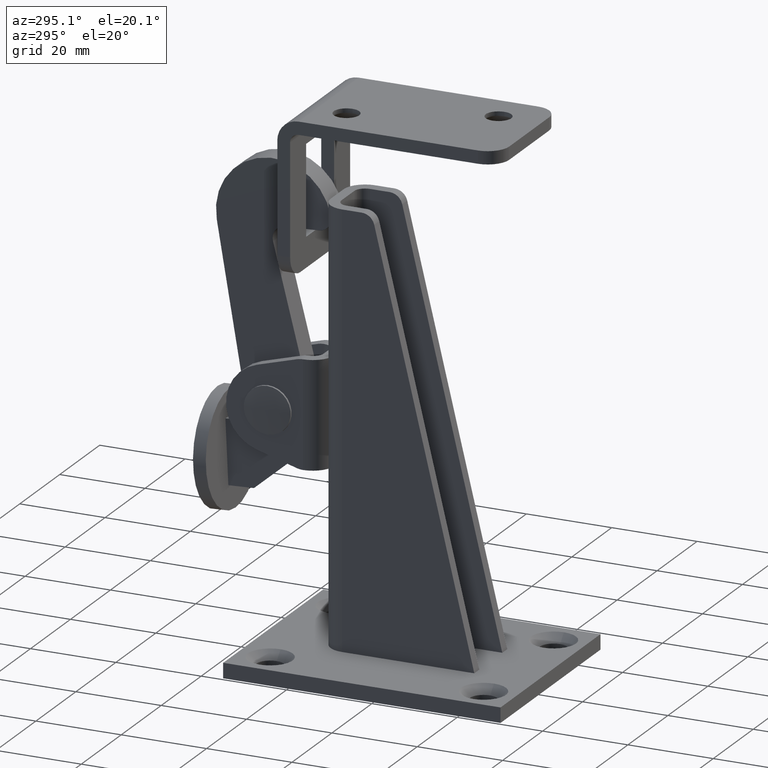
[diagram: clean part render]
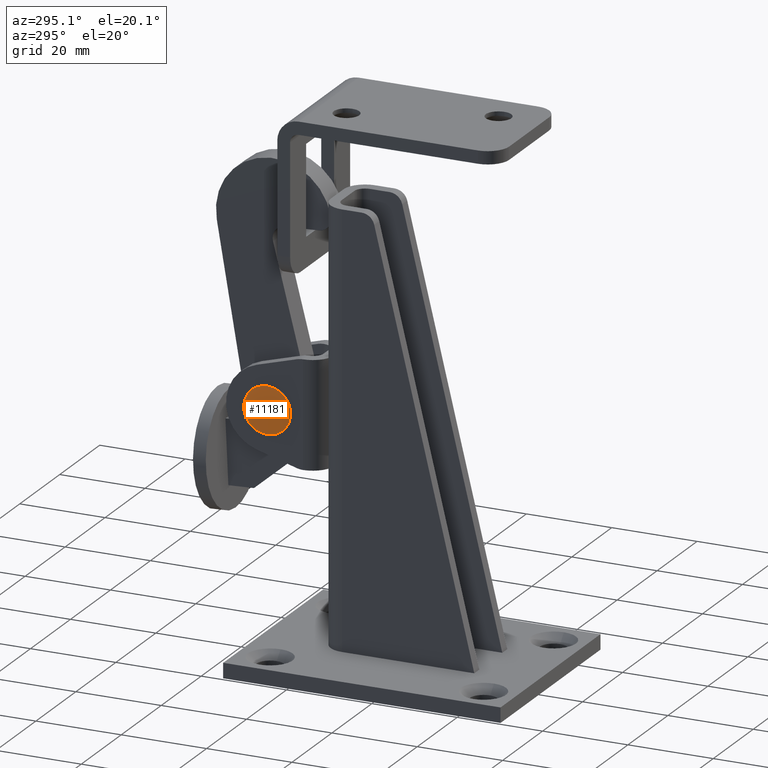
[diagram: same view with one face highlighted and labeled with its STEP entity id]
A machine part, auxiliary view. The second image highlights one B-rep face of the part: STEP entity #11181.
In plain terms, the highlighted spherical surface has radius 30.5 mm.
Its self-contained STEP definition (entity closure, byte-faithful):
#143 = CIRCLE ( 'NONE', #12633, 5.500000000000000000 ) ;
#717 = EDGE_CURVE ( 'NONE', #4888, #4888, #143, .T. ) ;
#4143 = DIRECTION ( 'NONE',  ( -1.000000000000000000, 0.0000000000000000000, 0.0000000000000000000 ) ) ;
#4888 = VERTEX_POINT ( 'NONE', #12109 ) ;
#5106 = AXIS2_PLACEMENT_3D ( 'NONE', #11556, #6200, #12618 ) ;
#6200 = DIRECTION ( 'NONE',  ( 0.0000000000000000000, -0.0000000000000000000, 1.000000000000000000 ) ) ;
#7427 = DIRECTION ( 'NONE',  ( 0.0000000000000000000, 0.0000000000000000000, 1.000000000000000000 ) ) ;
#7439 = SPHERICAL_SURFACE ( 'NONE', #5106, 30.49999999999996800 ) ;
#10926 = EDGE_LOOP ( 'NONE', ( #11655 ) ) ;
#11181 = ADVANCED_FACE ( 'NONE', ( #11432 ), #7439, .T. ) ;
#11432 = FACE_OUTER_BOUND ( 'NONE', #10926, .T. ) ;
#11556 = CARTESIAN_POINT ( 'NONE',  ( 22.74999999999996800, 0.0000000000000000000, 0.0000000000000000000 ) ) ;
#11655 = ORIENTED_EDGE ( 'NONE', *, *, #717, .T. ) ;
#12109 = CARTESIAN_POINT ( 'NONE',  ( -7.249999999999999100, 0.0000000000000000000, 5.500000000000000000 ) ) ;
#12618 = DIRECTION ( 'NONE',  ( 0.0000000000000000000, 1.000000000000000000, 0.0000000000000000000 ) ) ;
#12633 = AXIS2_PLACEMENT_3D ( 'NONE', #12724, #4143, #7427 ) ;
#12724 = CARTESIAN_POINT ( 'NONE',  ( -7.249999999999999100, 0.0000000000000000000, 0.0000000000000000000 ) ) ;